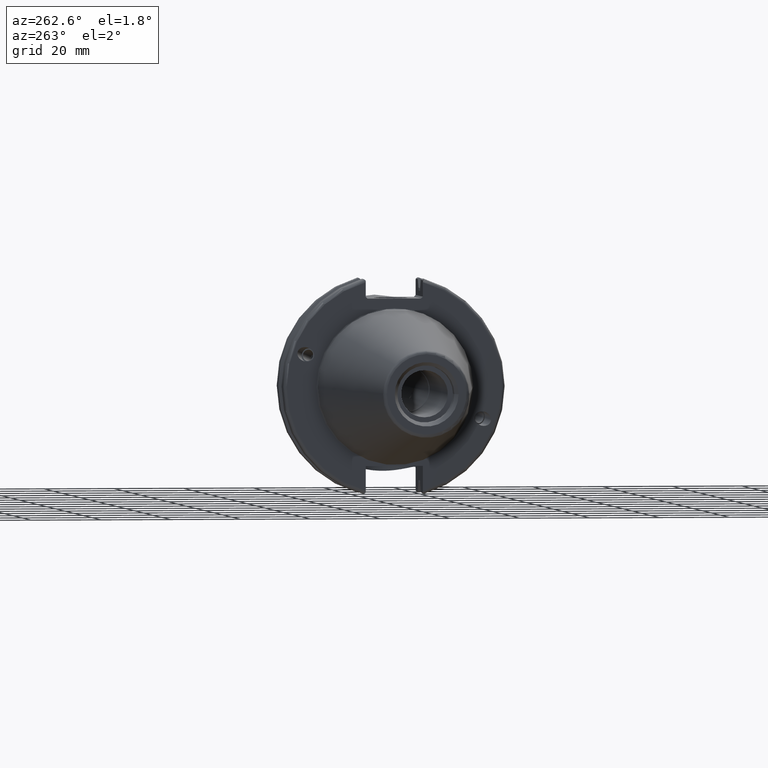
[diagram: clean part render]
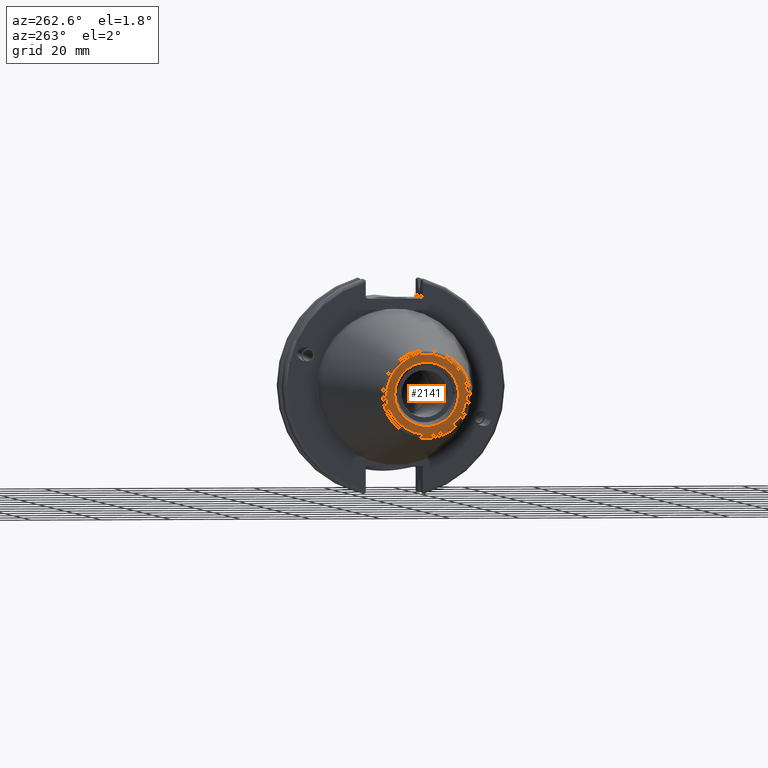
[diagram: same view with one face highlighted and labeled with its STEP entity id]
A machine part, auxiliary view. The second image highlights one B-rep face of the part: STEP entity #2141.
In plain terms, the highlighted planar face has unit normal (-1, 0, 0).
Its self-contained STEP definition (entity closure, byte-faithful):
#70=PLANE('',#2439);
#137=FACE_BOUND('',#371,.T.);
#252=FACE_OUTER_BOUND('',#370,.T.);
#370=EDGE_LOOP('',(#1890,#1891));
#371=EDGE_LOOP('',(#1892,#1893));
#750=CIRCLE('',#2436,11.4071305970304);
#751=CIRCLE('',#2437,11.4071305970304);
#753=CIRCLE('',#2440,9.15);
#754=CIRCLE('',#2441,9.15);
#993=VERTEX_POINT('',#4122);
#994=VERTEX_POINT('',#4124);
#995=VERTEX_POINT('',#4129);
#996=VERTEX_POINT('',#4130);
#1311=EDGE_CURVE('',#993,#994,#750,.T.);
#1312=EDGE_CURVE('',#994,#993,#751,.T.);
#1314=EDGE_CURVE('',#995,#996,#753,.T.);
#1315=EDGE_CURVE('',#996,#995,#754,.T.);
#1890=ORIENTED_EDGE('',*,*,#1312,.F.);
#1891=ORIENTED_EDGE('',*,*,#1311,.F.);
#1892=ORIENTED_EDGE('',*,*,#1314,.T.);
#1893=ORIENTED_EDGE('',*,*,#1315,.T.);
#2141=ADVANCED_FACE('',(#252,#137),#70,.T.);
#2436=AXIS2_PLACEMENT_3D('',#4125,#3063,#3064);
#2437=AXIS2_PLACEMENT_3D('',#4126,#3065,#3066);
#2439=AXIS2_PLACEMENT_3D('',#4128,#3069,#3070);
#2440=AXIS2_PLACEMENT_3D('',#4131,#3071,#3072);
#2441=AXIS2_PLACEMENT_3D('',#4132,#3073,#3074);
#3063=DIRECTION('center_axis',(1.,0.,0.));
#3064=DIRECTION('ref_axis',(0.,-1.,1.83697019872103E-16));
#3065=DIRECTION('center_axis',(1.,0.,0.));
#3066=DIRECTION('ref_axis',(0.,-1.,1.83697019872103E-16));
#3069=DIRECTION('center_axis',(-1.,0.,0.));
#3070=DIRECTION('ref_axis',(0.,0.,1.));
#3071=DIRECTION('center_axis',(1.,0.,0.));
#3072=DIRECTION('ref_axis',(0.,0.,-1.));
#3073=DIRECTION('center_axis',(1.,0.,0.));
#3074=DIRECTION('ref_axis',(0.,0.,-1.));
#4122=CARTESIAN_POINT('',(-68.25,-1.39697059731091E-15,11.4071305970304));
#4124=CARTESIAN_POINT('',(-68.25,11.4071305970304,-6.98485298655456E-16));
#4125=CARTESIAN_POINT('Origin',(-68.25,0.,0.));
#4126=CARTESIAN_POINT('Origin',(-68.25,0.,0.));
#4128=CARTESIAN_POINT('Origin',(-68.25,12.271875,0.));
#4129=CARTESIAN_POINT('',(-68.25,9.15,0.));
#4130=CARTESIAN_POINT('',(-68.25,-9.15,-1.12055182121983E-15));
#4131=CARTESIAN_POINT('Origin',(-68.25,0.,0.));
#4132=CARTESIAN_POINT('Origin',(-68.25,0.,0.));